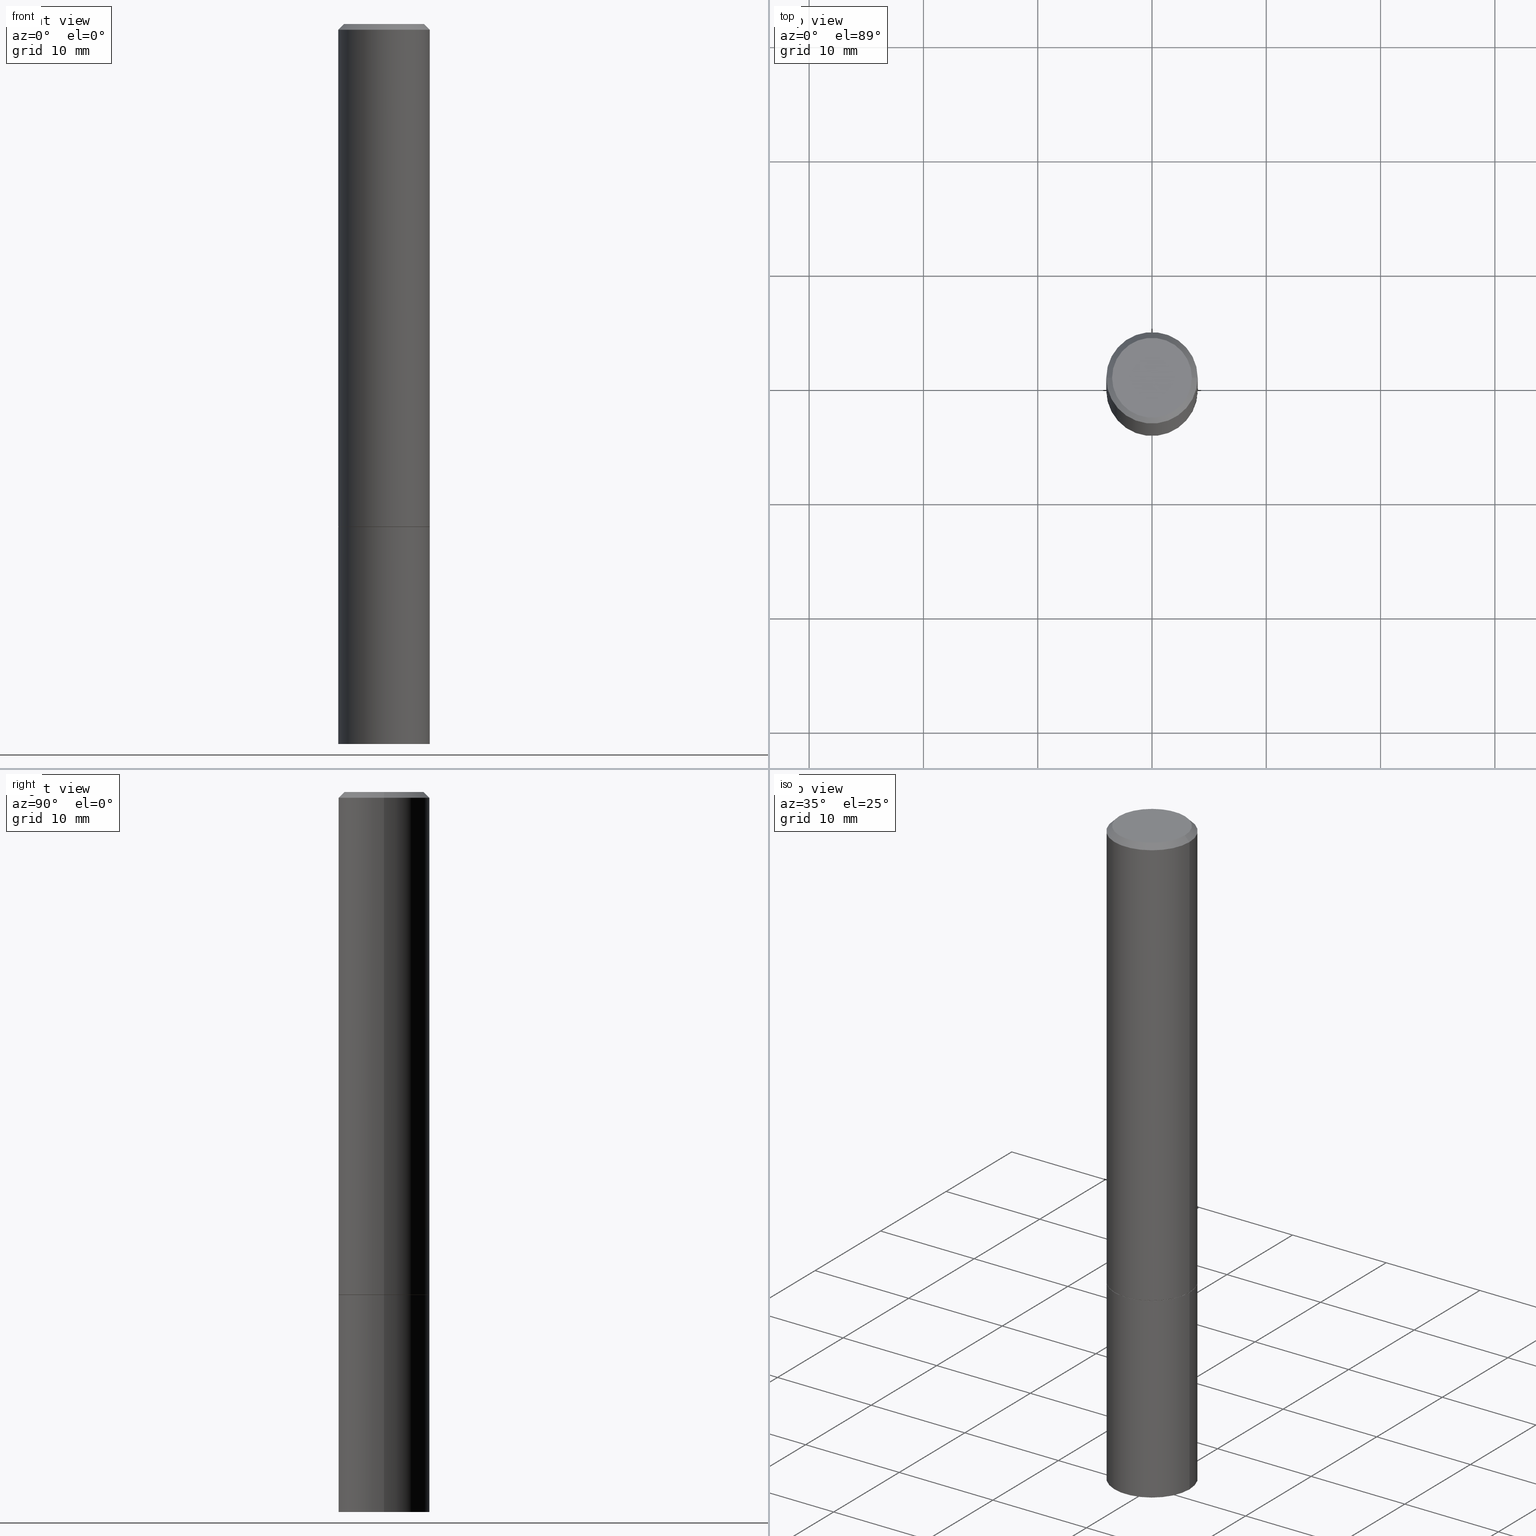
[diagram: canonical four-view strip — front | top / right | iso, engineering-drawing reading convention]
A machine part, canonical four-view strip (front | top / right | iso — engineering-drawing reading convention). The complete STEP part file that produces these views, byte-faithful:
ISO-10303-21;
HEADER;
FILE_DESCRIPTION (( 'STEP AP203' ),
    '1' );
FILE_NAME ('46362.STEP',
    '2024-02-28T10:21:04',
    ( '' ),
    ( '' ),
    'SwSTEP 2.0',
    'SolidWorks 2023',
    '' );
FILE_SCHEMA (( 'CONFIG_CONTROL_DESIGN' ));
ENDSEC;

DATA;
#1 = CC_DESIGN_PERSON_AND_ORGANIZATION_ASSIGNMENT ( #346, #153, ( #106 ) ) ;
#2 = DATE_AND_TIME ( #252, #320 ) ;
#3 = EDGE_LOOP ( 'NONE', ( #171, #60 ) ) ;
#4 = CALENDAR_DATE ( 2024, 28, 2 ) ;
#5 = LINE ( 'NONE', #285, #237 ) ;
#6 =( LENGTH_UNIT ( ) NAMED_UNIT ( * ) SI_UNIT ( $, .METRE. ) );
#7 = ADVANCED_FACE ( 'NONE', ( #15 ), #282, .T. ) ;
#8 = CIRCLE ( 'NONE', #221, 0.1374999999999997613 ) ;
#9 = CARTESIAN_POINT ( 'NONE',  ( -0.1575000000000000011, -1.938210825535841109E-15, -1.731300000000000283 ) ) ;
#10 = DATE_TIME_ROLE ( 'classification_date' ) ;
#11 = ORIENTED_EDGE ( 'NONE', *, *, #33, .F. ) ;
#12 = AXIS2_PLACEMENT_3D ( 'NONE', #34, #26, #164 ) ;
#13 = LOCAL_TIME ( 5, 21, 4.000000000000000000, #223 ) ;
#14 = EDGE_CURVE ( 'NONE', #300, #318, #341, .T. ) ;
#15 = FACE_OUTER_BOUND ( 'NONE', #195, .T. ) ;
#16 = DIRECTION ( 'NONE',  ( -2.445468806185136597E-29, 3.491481338843145583E-15, 1.000000000000000000 ) ) ;
#17 = FACE_OUTER_BOUND ( 'NONE', #365, .T. ) ;
#18 = DIRECTION ( 'NONE',  ( 1.000000000000000000, -6.982962677686267499E-15, 0.000000000000000000 ) ) ;
#19 = ADVANCED_FACE ( 'NONE', ( #43 ), #266, .F. ) ;
#20 = ORIENTED_EDGE ( 'NONE', *, *, #273, .T. ) ;
#21 = CARTESIAN_POINT ( 'NONE',  ( 6.065496279980994755E-29, -8.659921164732655335E-15, -2.480300000000000171 ) ) ;
#22 = CLOSED_SHELL ( 'NONE', ( #240, #148, #360, #188 ) ) ;
#23 = DIRECTION ( 'NONE',  ( -2.445468806185136597E-29, 3.491481338843145583E-15, 1.000000000000000000 ) ) ;
#24 = AXIS2_PLACEMENT_3D ( 'NONE', #231, #83, #184 ) ;
#25 = AXIS2_PLACEMENT_3D ( 'NONE', #120, #23, #238 ) ;
#26 = DIRECTION ( 'NONE',  ( -2.445468806185136597E-29, 3.491481338843145583E-15, 1.000000000000000000 ) ) ;
#27 = ADVANCED_FACE ( 'NONE', ( #17 ), #116, .F. ) ;
#28 = AXIS2_PLACEMENT_3D ( 'NONE', #119, #331, #71 ) ;
#29 = VECTOR ( 'NONE', #176, 39.37007874015748143 ) ;
#30 = ORIENTED_EDGE ( 'NONE', *, *, #196, .T. ) ;
#31 = DATE_AND_TIME ( #284, #162 ) ;
#32 = DIRECTION ( 'NONE',  ( -0.7071067811865232589, 7.493145998870265808E-15, 0.7071067811865715536 ) ) ;
#33 = EDGE_CURVE ( 'NONE', #235, #318, #5, .T. ) ;
#34 = CARTESIAN_POINT ( 'NONE',  ( 4.236285612954512953E-29, -6.048293123277982656E-15, -1.732300000000000173 ) ) ;
#35 = CIRCLE ( 'NONE', #28, 0.1575000000000000011 ) ;
#36 = CARTESIAN_POINT ( 'NONE',  ( 1.099816621735629290E-15, 0.1574999999999939504, -1.732300000000001061 ) ) ;
#37 = LINE ( 'NONE', #214, #192 ) ;
#38 = CARTESIAN_POINT ( 'NONE',  ( 4.236285612954512953E-29, -6.048293123277982656E-15, -1.732300000000000173 ) ) ;
#39 = APPROVAL ( #247, 'UNSPECIFIED' ) ;
#40 = VERTEX_POINT ( 'NONE', #107 ) ;
#41 = FACE_OUTER_BOUND ( 'NONE', #280, .T. ) ;
#42 = CC_DESIGN_SECURITY_CLASSIFICATION ( #241, ( #363 ) ) ;
#43 = FACE_OUTER_BOUND ( 'NONE', #92, .T. ) ;
#44 = EDGE_CURVE ( 'NONE', #235, #179, #150, .T. ) ;
#45 = CARTESIAN_POINT ( 'NONE',  ( 0.000000000000000000, 0.000000000000000000, 0.000000000000000000 ) ) ;
#46 = CARTESIAN_POINT ( 'NONE',  ( 4.236285612954512953E-29, -6.048293123277982656E-15, -1.732300000000000173 ) ) ;
#47 = APPROVAL_PERSON_ORGANIZATION ( #183, #302, #161 ) ;
#48 = LINE ( 'NONE', #361, #258 ) ;
#49 = DIRECTION ( 'NONE',  ( 1.000000000000000000, -6.982962677686267499E-15, 0.000000000000000000 ) ) ;
#50 = AXIS2_PLACEMENT_3D ( 'NONE', #190, #75, #246 ) ;
#51 = APPLICATION_PROTOCOL_DEFINITION ( 'international standard', 'config_control_design', 1994, #255 ) ;
#52 = AXIS2_PLACEMENT_3D ( 'NONE', #267, #16, #357 ) ;
#53 = COORDINATED_UNIVERSAL_TIME_OFFSET ( 5, 0, .BEHIND. ) ;
#54 = SHAPE_DEFINITION_REPRESENTATION ( #321, #261 ) ;
#55 = LENGTH_MEASURE_WITH_UNIT ( LENGTH_MEASURE( 0.02539999999999999897 ), #6 );
#56 = ORIENTED_EDGE ( 'NONE', *, *, #109, .T. ) ;
#57 = DIRECTION ( 'NONE',  ( -1.000000000000000000, 6.982962677686266711E-15, 0.000000000000000000 ) ) ;
#58 = APPROVAL_DATE_TIME ( #157, #65 ) ;
#59 = AXIS2_PLACEMENT_3D ( 'NONE', #278, #147, #127 ) ;
#60 = ORIENTED_EDGE ( 'NONE', *, *, #309, .F. ) ;
#61 = EDGE_CURVE ( 'NONE', #135, #198, #37, .T. ) ;
#62 =( NAMED_UNIT ( * ) SI_UNIT ( $, .STERADIAN. ) SOLID_ANGLE_UNIT ( ) );
#63 = PERSON_AND_ORGANIZATION_ROLE ( 'classification_officer' ) ;
#64 = EDGE_LOOP ( 'NONE', ( #306, #315, #77, #67 ) ) ;
#65 = APPROVAL ( #104, 'UNSPECIFIED' ) ;
#66 = ORIENTED_EDGE ( 'NONE', *, *, #233, .T. ) ;
#67 = ORIENTED_EDGE ( 'NONE', *, *, #349, .F. ) ;
#68 = CARTESIAN_POINT ( 'NONE',  ( 4.890937612370281041E-31, -6.982962677686302702E-17, -0.02000000000000003511 ) ) ;
#69 = CC_DESIGN_APPROVAL ( #302, ( #363 ) ) ;
#70 = EDGE_CURVE ( 'NONE', #303, #143, #8, .T. ) ;
#71 = DIRECTION ( 'NONE',  ( 1.000000000000000000, -6.982962677686268288E-15, 0.000000000000000000 ) ) ;
#72 = DESIGN_CONTEXT ( 'detailed design', #255, 'design' ) ;
#73 = DIRECTION ( 'NONE',  ( 0.7071067811865232589, -2.468850131082003836E-15, 0.7071067811865715536 ) ) ;
#74 = ORIENTED_EDGE ( 'NONE', *, *, #326, .F. ) ;
#75 = DIRECTION ( 'NONE',  ( -2.445468806185136597E-29, 3.491481338843145583E-15, 1.000000000000000000 ) ) ;
#76 = DIRECTION ( 'NONE',  ( -2.445468806185136597E-29, 3.491481338843145583E-15, 1.000000000000000000 ) ) ;
#77 = ORIENTED_EDGE ( 'NONE', *, *, #172, .T. ) ;
#78 = CC_DESIGN_DATE_AND_TIME_ASSIGNMENT ( #344, #81, ( #106 ) ) ;
#79 = VECTOR ( 'NONE', #269, 39.37007874015748143 ) ;
#80 = APPROVAL_PERSON_ORGANIZATION ( #99, #65, #314 ) ;
#81 = DATE_TIME_ROLE ( 'creation_date' ) ;
#82 =( CONVERSION_BASED_UNIT ( 'INCH', #55 ) LENGTH_UNIT ( ) NAMED_UNIT ( #259 ) );
#83 = DIRECTION ( 'NONE',  ( -2.438088387897960049E-29, 3.491481338843145188E-15, 1.000000000000000000 ) ) ;
#84 = APPLICATION_PROTOCOL_DEFINITION ( 'international standard', 'config_control_design', 1994, #228 ) ;
#85 = EDGE_LOOP ( 'NONE', ( #11, #345, #20, #313 ) ) ;
#86 = DIRECTION ( 'NONE',  ( 1.000000000000000000, -6.982962677686268288E-15, 0.000000000000000000 ) ) ;
#87 = CARTESIAN_POINT ( 'NONE',  ( -0.1574999999999997513, 1.029986994958722210E-15, -0.02000000000000003511 ) ) ;
#88 = CIRCLE ( 'NONE', #50, 0.1574999999999997513 ) ;
#89 = CONICAL_SURFACE ( 'NONE', #102, 0.1574999999999997513, 0.7853981633974471688 ) ;
#90 = ORIENTED_EDGE ( 'NONE', *, *, #219, .F. ) ;
#91 = DIRECTION ( 'NONE',  ( 1.000000000000000000, -6.982962677686266711E-15, 4.876176775795935793E-29 ) ) ;
#92 = EDGE_LOOP ( 'NONE', ( #105, #66 ) ) ;
#93 = FACE_OUTER_BOUND ( 'NONE', #358, .T. ) ;
#94 = CONICAL_SURFACE ( 'NONE', #290, 0.1565000000000000002, 0.7853981633974141952 ) ;
#95 = LINE ( 'NONE', #123, #29 ) ;
#96 = EDGE_CURVE ( 'NONE', #179, #235, #145, .T. ) ;
#97 = CONICAL_SURFACE ( 'NONE', #166, 0.1565000000000000002, 0.7853981633974141952 ) ;
#98 = EDGE_CURVE ( 'NONE', #318, #300, #201, .T. ) ;
#99 = PERSON_AND_ORGANIZATION ( #324, #342 ) ;
#100 = FACE_OUTER_BOUND ( 'NONE', #3, .T. ) ;
#101 = CIRCLE ( 'NONE', #327, 0.1575000000000000011 ) ;
#102 = AXIS2_PLACEMENT_3D ( 'NONE', #108, #156, #57 ) ;
#103 = DIRECTION ( 'NONE',  ( -2.445468806185136597E-29, 3.491481338843145583E-15, 1.000000000000000000 ) ) ;
#104 = APPROVAL_STATUS ( 'not_yet_approved' ) ;
#105 = ORIENTED_EDGE ( 'NONE', *, *, #70, .T. ) ;
#106 = PRODUCT_DEFINITION ( 'UNKNOWN', '', #363, #72 ) ;
#107 = CARTESIAN_POINT ( 'NONE',  ( -0.1575000000000000011, -6.235002335183160998E-15, -2.480300000000000171 ) ) ;
#108 = CARTESIAN_POINT ( 'NONE',  ( 4.890937612370281041E-31, -6.982962677686302702E-17, -0.02000000000000003511 ) ) ;
#109 = EDGE_CURVE ( 'NONE', #218, #330, #88, .T. ) ;
#110 = FACE_OUTER_BOUND ( 'NONE', #85, .T. ) ;
#111 = CARTESIAN_POINT ( 'NONE',  ( 4.890937612370281041E-31, -6.982962677686302702E-17, -0.02000000000000003511 ) ) ;
#112 = AXIS2_PLACEMENT_3D ( 'NONE', #38, #225, #114 ) ;
#113 = AXIS2_PLACEMENT_3D ( 'NONE', #36, #138, #249 ) ;
#114 = DIRECTION ( 'NONE',  ( 1.000000000000000000, -6.982962677686267499E-15, 0.000000000000000000 ) ) ;
#115 = ORIENTED_EDGE ( 'NONE', *, *, #273, .F. ) ;
#116 = PLANE ( 'NONE',  #24 ) ;
#117 = DIRECTION ( 'NONE',  ( 1.000000000000000000, -6.982962677686266711E-15, 0.000000000000000000 ) ) ;
#118 = DIRECTION ( 'NONE',  ( 1.000000000000000000, -6.982962677686265922E-15, 4.876176775795935232E-29 ) ) ;
#119 = CARTESIAN_POINT ( 'NONE',  ( 4.236285612954512953E-29, -6.048293123277982656E-15, -1.732300000000000173 ) ) ;
#120 = CARTESIAN_POINT ( 'NONE',  ( 0.000000000000000000, 0.000000000000000000, 0.000000000000000000 ) ) ;
#121 = CC_DESIGN_PERSON_AND_ORGANIZATION_ASSIGNMENT ( #310, #129, ( #286 ) ) ;
#122 = ORIENTED_EDGE ( 'NONE', *, *, #44, .F. ) ;
#123 = CARTESIAN_POINT ( 'NONE',  ( 0.1574999999999997513, -1.150358061425877697E-15, -0.02000000000000003511 ) ) ;
#124 = ORIENTED_EDGE ( 'NONE', *, *, #61, .F. ) ;
#125 = CARTESIAN_POINT ( 'NONE',  ( 4.233840144148327350E-29, -6.044801641939138860E-15, -1.731300000000000283 ) ) ;
#126 = EDGE_LOOP ( 'NONE', ( #356, #155 ) ) ;
#127 = DIRECTION ( 'NONE',  ( 1.000000000000000000, -6.982962677686265922E-15, 4.876173381029109010E-29 ) ) ;
#128 = ORIENTED_EDGE ( 'NONE', *, *, #219, .T. ) ;
#129 = PERSON_AND_ORGANIZATION_ROLE ( 'design_owner' ) ;
#130 = MANIFOLD_SOLID_BREP ( 'Body-Move/Copy2[1]', #22 ) ;
#131 = DIRECTION ( 'NONE',  ( -1.000000000000000000, 6.982962677686265922E-15, -4.876176775795935793E-29 ) ) ;
#132 = EDGE_LOOP ( 'NONE', ( #90, #308, #275, #170 ) ) ;
#133 = CALENDAR_DATE ( 2024, 28, 2 ) ;
#134 = COORDINATED_UNIVERSAL_TIME_OFFSET ( 5, 0, .BEHIND. ) ;
#135 = VERTEX_POINT ( 'NONE', #243 ) ;
#136 = AXIS2_PLACEMENT_3D ( 'NONE', #125, #103, #86 ) ;
#137 = CC_DESIGN_DATE_AND_TIME_ASSIGNMENT ( #139, #10, ( #241 ) ) ;
#138 = DIRECTION ( 'NONE',  ( 2.438088387897960049E-29, -3.491481338843145188E-15, -1.000000000000000000 ) ) ;
#139 = DATE_AND_TIME ( #295, #13 ) ;
#140 = ORIENTED_EDGE ( 'NONE', *, *, #172, .F. ) ;
#141 = ORIENTED_EDGE ( 'NONE', *, *, #109, .F. ) ;
#142 = CLOSED_SHELL ( 'NONE', ( #338, #297, #7, #319, #165, #212, #27, #19 ) ) ;
#143 = VERTEX_POINT ( 'NONE', #366 ) ;
#144 = ORIENTED_EDGE ( 'NONE', *, *, #96, .F. ) ;
#145 = CIRCLE ( 'NONE', #12, 0.1565000000000000002 ) ;
#146 = APPROVAL_PERSON_ORGANIZATION ( #353, #39, #230 ) ;
#147 = DIRECTION ( 'NONE',  ( -2.445468806185136597E-29, 3.491481338843145583E-15, 1.000000000000000000 ) ) ;
#148 = ADVANCED_FACE ( 'NONE', ( #100 ), #348, .T. ) ;
#149 = EDGE_LOOP ( 'NONE', ( #336, #30, #74, #124 ) ) ;
#150 = CIRCLE ( 'NONE', #112, 0.1565000000000000002 ) ;
#151 = CIRCLE ( 'NONE', #59, 0.1374999999999997613 ) ;
#152 = DIRECTION ( 'NONE',  ( 1.000000000000000000, -6.982962677686265922E-15, 4.876173381029109010E-29 ) ) ;
#153 = PERSON_AND_ORGANIZATION_ROLE ( 'creator' ) ;
#154 = DIRECTION ( 'NONE',  ( -2.445468806185136597E-29, 3.491481338843145583E-15, 1.000000000000000000 ) ) ;
#155 = ORIENTED_EDGE ( 'NONE', *, *, #181, .T. ) ;
#156 = DIRECTION ( 'NONE',  ( 2.445468806185136597E-29, -3.491481338843145583E-15, -1.000000000000000000 ) ) ;
#157 = DATE_AND_TIME ( #4, #335 ) ;
#158 = ORIENTED_EDGE ( 'NONE', *, *, #33, .T. ) ;
#159 = CC_DESIGN_PERSON_AND_ORGANIZATION_ASSIGNMENT ( #351, #325, ( #363 ) ) ;
#160 = AXIS2_PLACEMENT_3D ( 'NONE', #257, #340, #131 ) ;
#161 = APPROVAL_ROLE ( '' ) ;
#162 = LOCAL_TIME ( 5, 21, 4.000000000000000000, #134 ) ;
#163 = DIRECTION ( 'NONE',  ( -2.445468806185136597E-29, 3.491481338843145583E-15, 1.000000000000000000 ) ) ;
#164 = DIRECTION ( 'NONE',  ( 1.000000000000000000, -6.982962677686267499E-15, 0.000000000000000000 ) ) ;
#165 = ADVANCED_FACE ( 'NONE', ( #189 ), #323, .T. ) ;
#166 = AXIS2_PLACEMENT_3D ( 'NONE', #199, #333, #18 ) ;
#167 = FACE_OUTER_BOUND ( 'NONE', #126, .T. ) ;
#168 = DIRECTION ( 'NONE',  ( 1.000000000000000000, -6.982962677686261977E-15, 0.000000000000000000 ) ) ;
#169 = PERSON_AND_ORGANIZATION ( #324, #342 ) ;
#170 = ORIENTED_EDGE ( 'NONE', *, *, #349, .T. ) ;
#171 = ORIENTED_EDGE ( 'NONE', *, *, #205, .F. ) ;
#172 = EDGE_CURVE ( 'NONE', #300, #218, #197, .T. ) ;
#173 = ORIENTED_EDGE ( 'NONE', *, *, #181, .F. ) ;
#174 = AXIS2_PLACEMENT_3D ( 'NONE', #220, #299, #262 ) ;
#175 = DIRECTION ( 'NONE',  ( -2.445468806185136597E-29, 3.491481338843145583E-15, 1.000000000000000000 ) ) ;
#176 = DIRECTION ( 'NONE',  ( 0.7071067811865466846, -7.319954787623252890E-15, -0.7071067811865483499 ) ) ;
#177 = LINE ( 'NONE', #274, #202 ) ;
#178 = DIRECTION ( 'NONE',  ( 1.000000000000000000, -6.982962677686266711E-15, 4.876176775795935793E-29 ) ) ;
#179 = VERTEX_POINT ( 'NONE', #200 ) ;
#180 = DIRECTION ( 'NONE',  ( 1.000000000000000000, 0.000000000000000000, 0.000000000000000000 ) ) ;
#181 = EDGE_CURVE ( 'NONE', #281, #198, #35, .T. ) ;
#182 = CARTESIAN_POINT ( 'NONE',  ( 0.1575000000000000011, -7.144618263674725551E-15, -1.731300000000000283 ) ) ;
#183 = PERSON_AND_ORGANIZATION ( #324, #342 ) ;
#184 = DIRECTION ( 'NONE',  ( 1.000000000000000000, -6.982962677686265922E-15, 4.876176775795935793E-29 ) ) ;
#185 = CC_DESIGN_APPROVAL ( #39, ( #241 ) ) ;
#186 = ORIENTED_EDGE ( 'NONE', *, *, #14, .T. ) ;
#187 = CARTESIAN_POINT ( 'NONE',  ( -0.1374999999999997613, 9.950721815702909552E-16, 4.268512490093574228E-18 ) ) ;
#188 = ADVANCED_FACE ( 'NONE', ( #41 ), #268, .T. ) ;
#189 = FACE_OUTER_BOUND ( 'NONE', #64, .T. ) ;
#190 = CARTESIAN_POINT ( 'NONE',  ( 4.890937612370281041E-31, -6.982962677686302702E-17, -0.02000000000000003511 ) ) ;
#191 = DIRECTION ( 'NONE',  ( -2.445468806185136597E-29, 3.491481338843145583E-15, 1.000000000000000000 ) ) ;
#192 = VECTOR ( 'NONE', #289, 39.37007874015748143 ) ;
#193 = AXIS2_PLACEMENT_3D ( 'NONE', #298, #239, #180 ) ;
#194 = DIRECTION ( 'NONE',  ( -2.445468806185136597E-29, 3.491481338843145583E-15, 1.000000000000000000 ) ) ;
#195 = EDGE_LOOP ( 'NONE', ( #272, #128, #56, #244 ) ) ;
#196 = EDGE_CURVE ( 'NONE', #40, #281, #236, .T. ) ;
#197 = LINE ( 'NONE', #352, #208 ) ;
#198 = VERTEX_POINT ( 'NONE', #204 ) ;
#199 = CARTESIAN_POINT ( 'NONE',  ( 4.236285612954512953E-29, -6.048293123277982656E-15, -1.732300000000000173 ) ) ;
#200 = CARTESIAN_POINT ( 'NONE',  ( 0.1565000000000000002, -7.141126782335882544E-15, -1.732300000000000173 ) ) ;
#201 = CIRCLE ( 'NONE', #136, 0.1575000000000000011 ) ;
#202 = VECTOR ( 'NONE', #242, 39.37007874015748143 ) ;
#203 = ORIENTED_EDGE ( 'NONE', *, *, #96, .T. ) ;
#204 = CARTESIAN_POINT ( 'NONE',  ( 0.1575000000000000011, -7.148109745013570136E-15, -1.732300000000000173 ) ) ;
#205 = EDGE_CURVE ( 'NONE', #135, #40, #101, .T. ) ;
#206 = UNCERTAINTY_MEASURE_WITH_UNIT (LENGTH_MEASURE( 1.000000000000000082E-05 ), #82, 'distance_accuracy_value', 'NONE');
#207 = CARTESIAN_POINT ( 'NONE',  ( -0.1575000000000000011, -6.235002335183160998E-15, -1.732300000000000173 ) ) ;
#208 = VECTOR ( 'NONE', #229, 39.37007874015748143 ) ;
#209 = ORIENTED_EDGE ( 'NONE', *, *, #292, .T. ) ;
#210 = AXIS2_PLACEMENT_3D ( 'NONE', #287, #256, #216 ) ;
#211 = CARTESIAN_POINT ( 'NONE',  ( -0.1574999999999997513, 1.029986994958722210E-15, -0.02000000000000003511 ) ) ;
#212 = ADVANCED_FACE ( 'NONE', ( #110 ), #94, .T. ) ;
#213 = CYLINDRICAL_SURFACE ( 'NONE', #283, 0.1574999999999998901 ) ;
#214 = CARTESIAN_POINT ( 'NONE',  ( 0.1575000000000000011, -1.099816621735586889E-15, 7.679978421878598033E-30 ) ) ;
#215 = AXIS2_PLACEMENT_3D ( 'NONE', #45, #175, #118 ) ;
#216 = DIRECTION ( 'NONE',  ( 1.000000000000000000, -6.982962677686261977E-15, 0.000000000000000000 ) ) ;
#217 = PRODUCT_RELATED_PRODUCT_CATEGORY ( 'detail', '', ( #286 ) ) ;
#218 = VERTEX_POINT ( 'NONE', #276 ) ;
#219 = EDGE_CURVE ( 'NONE', #143, #218, #95, .T. ) ;
#220 = CARTESIAN_POINT ( 'NONE',  ( 9.601573681818598978E-16, 0.1374999999999997613, -4.779444278458815105E-16 ) ) ;
#221 = AXIS2_PLACEMENT_3D ( 'NONE', #350, #154, #152 ) ;
#222 = LOCAL_TIME ( 5, 21, 4.000000000000000000, #279 ) ;
#223 = COORDINATED_UNIVERSAL_TIME_OFFSET ( 5, 0, .BEHIND. ) ;
#224 = CC_DESIGN_PERSON_AND_ORGANIZATION_ASSIGNMENT ( #329, #291, ( #363 ) ) ;
#225 = DIRECTION ( 'NONE',  ( -2.445468806185136597E-29, 3.491481338843145583E-15, 1.000000000000000000 ) ) ;
#226 = CIRCLE ( 'NONE', #210, 0.1575000000000000011 ) ;
#227 = EDGE_LOOP ( 'NONE', ( #186, #209, #141, #140 ) ) ;
#228 = APPLICATION_CONTEXT ( 'configuration controlled 3d designs of mechanical parts and assemblies' ) ;
#229 = DIRECTION ( 'NONE',  ( -2.445468806185136877E-29, 3.491481338843145188E-15, 1.000000000000000000 ) ) ;
#230 = APPROVAL_ROLE ( '' ) ;
#231 = CARTESIAN_POINT ( 'NONE',  ( 4.236285612954513513E-29, -6.048293123277983445E-15, -1.732300000000000617 ) ) ;
#232 =( NAMED_UNIT ( * ) PLANE_ANGLE_UNIT ( ) SI_UNIT ( $, .RADIAN. ) );
#233 = EDGE_CURVE ( 'NONE', #143, #303, #151, .T. ) ;
#234 = PLANE ( 'NONE',  #113 ) ;
#235 = VERTEX_POINT ( 'NONE', #307 ) ;
#236 = LINE ( 'NONE', #359, #79 ) ;
#237 = VECTOR ( 'NONE', #32, 39.37007874015748854 ) ;
#238 = DIRECTION ( 'NONE',  ( 1.000000000000000000, -6.982962677686265922E-15, 4.876176775795935232E-29 ) ) ;
#239 = DIRECTION ( 'NONE',  ( 0.000000000000000000, 0.000000000000000000, 1.000000000000000000 ) ) ;
#240 = ADVANCED_FACE ( 'NONE', ( #301 ), #271, .T. ) ;
#241 = SECURITY_CLASSIFICATION ( '', '', #293 ) ;
#242 = DIRECTION ( 'NONE',  ( -2.445468806185136877E-29, 3.491481338843145188E-15, 1.000000000000000000 ) ) ;
#243 = CARTESIAN_POINT ( 'NONE',  ( 0.1575000000000000011, -9.759737786468242027E-15, -2.480300000000000171 ) ) ;
#244 = ORIENTED_EDGE ( 'NONE', *, *, #248, .F. ) ;
#245 = MECHANICAL_CONTEXT ( 'NONE', #228, 'mechanical' ) ;
#246 = DIRECTION ( 'NONE',  ( 1.000000000000000000, -6.982962677686266711E-15, 0.000000000000000000 ) ) ;
#247 = APPROVAL_STATUS ( 'not_yet_approved' ) ;
#248 = EDGE_CURVE ( 'NONE', #303, #330, #304, .T. ) ;
#249 = DIRECTION ( 'NONE',  ( -1.000000000000000000, 6.982962677686265922E-15, -4.876176775795935793E-29 ) ) ;
#250 = ORIENTED_EDGE ( 'NONE', *, *, #14, .F. ) ;
#251 = VECTOR ( 'NONE', #337, 39.37007874015748143 ) ;
#252 = CALENDAR_DATE ( 2024, 28, 2 ) ;
#253 = APPROVAL_DATE_TIME ( #31, #302 ) ;
#254 = CARTESIAN_POINT ( 'NONE',  ( 4.233840144148327350E-29, -6.044801641939138860E-15, -1.731300000000000283 ) ) ;
#255 = APPLICATION_CONTEXT ( 'configuration controlled 3d designs of mechanical parts and assemblies' ) ;
#256 = DIRECTION ( 'NONE',  ( -2.445468806185136597E-29, 3.491481338843145583E-15, 1.000000000000000000 ) ) ;
#257 = CARTESIAN_POINT ( 'NONE',  ( 1.099816621735647434E-15, 0.1574999999999913136, -2.480300000000001059 ) ) ;
#258 = VECTOR ( 'NONE', #73, 39.37007874015748854 ) ;
#259 = DIMENSIONAL_EXPONENTS ( 1.000000000000000000, 0.000000000000000000, 0.000000000000000000, 0.000000000000000000, 0.000000000000000000, 0.000000000000000000, 0.000000000000000000 ) ;
#260 = MANIFOLD_SOLID_BREP ( 'Body-Move/Copy2[2]', #142 ) ;
#261 = ADVANCED_BREP_SHAPE_REPRESENTATION ( '46362', ( #130, #260, #193 ), #347 ) ;
#262 = DIRECTION ( 'NONE',  ( -1.000000000000000000, 6.982962677686265922E-15, -4.876176775795935793E-29 ) ) ;
#263 = DIRECTION ( 'NONE',  ( 1.000000000000000000, -6.982962677686268288E-15, 0.000000000000000000 ) ) ;
#264 = CIRCLE ( 'NONE', #328, 0.1574999999999997513 ) ;
#265 = DIRECTION ( 'NONE',  ( -2.445468806185136597E-29, 3.491481338843145583E-15, 1.000000000000000000 ) ) ;
#266 = PLANE ( 'NONE',  #174 ) ;
#267 = CARTESIAN_POINT ( 'NONE',  ( 4.236285612954512953E-29, -6.048293123277982656E-15, -1.732300000000000173 ) ) ;
#268 = CYLINDRICAL_SURFACE ( 'NONE', #215, 0.1575000000000000011 ) ;
#269 = DIRECTION ( 'NONE',  ( -2.445468806185136877E-29, 3.491481338843145188E-15, 1.000000000000000000 ) ) ;
#270 = CIRCLE ( 'NONE', #52, 0.1575000000000000011 ) ;
#271 = CYLINDRICAL_SURFACE ( 'NONE', #25, 0.1575000000000000011 ) ;
#272 = ORIENTED_EDGE ( 'NONE', *, *, #233, .F. ) ;
#273 = EDGE_CURVE ( 'NONE', #179, #300, #48, .T. ) ;
#274 = CARTESIAN_POINT ( 'NONE',  ( -0.1574999999999998901, 1.119104808822157012E-15, -7.747322767151471379E-30 ) ) ;
#275 = ORIENTED_EDGE ( 'NONE', *, *, #248, .T. ) ;
#276 = CARTESIAN_POINT ( 'NONE',  ( 0.1574999999999997513, -1.150358061425877697E-15, -0.02000000000000003511 ) ) ;
#277 = CC_DESIGN_PERSON_AND_ORGANIZATION_ASSIGNMENT ( #169, #63, ( #241 ) ) ;
#278 = CARTESIAN_POINT ( 'NONE',  ( -1.043851414335219820E-46, 1.490343170380447200E-32, 4.268512490100411279E-18 ) ) ;
#279 = COORDINATED_UNIVERSAL_TIME_OFFSET ( 5, 0, .BEHIND. ) ;
#280 = EDGE_LOOP ( 'NONE', ( #296, #322, #354, #173 ) ) ;
#281 = VERTEX_POINT ( 'NONE', #207 ) ;
#282 = CONICAL_SURFACE ( 'NONE', #334, 0.1574999999999997513, 0.7853981633974471688 ) ;
#283 = AXIS2_PLACEMENT_3D ( 'NONE', #339, #76, #178 ) ;
#284 = CALENDAR_DATE ( 2024, 28, 2 ) ;
#285 = CARTESIAN_POINT ( 'NONE',  ( -0.1565000000000000002, -4.936293741813426061E-15, -1.732300000000000173 ) ) ;
#286 = PRODUCT ( '46362', '46362', '', ( #245 ) ) ;
#287 = CARTESIAN_POINT ( 'NONE',  ( 6.065496279980994755E-29, -8.659921164732655335E-15, -2.480300000000000171 ) ) ;
#288 = AXIS2_PLACEMENT_3D ( 'NONE', #355, #265, #91 ) ;
#289 = DIRECTION ( 'NONE',  ( -2.445468806185136877E-29, 3.491481338843145188E-15, 1.000000000000000000 ) ) ;
#290 = AXIS2_PLACEMENT_3D ( 'NONE', #46, #362, #49 ) ;
#291 = PERSON_AND_ORGANIZATION_ROLE ( 'creator' ) ;
#292 = EDGE_CURVE ( 'NONE', #318, #330, #177, .T. ) ;
#293 = SECURITY_CLASSIFICATION_LEVEL ( 'unclassified' ) ;
#294 = DIRECTION ( 'NONE',  ( 2.445468806185136597E-29, -3.491481338843145583E-15, -1.000000000000000000 ) ) ;
#295 = CALENDAR_DATE ( 2024, 28, 2 ) ;
#296 = ORIENTED_EDGE ( 'NONE', *, *, #196, .F. ) ;
#297 = ADVANCED_FACE ( 'NONE', ( #364 ), #213, .T. ) ;
#298 = CARTESIAN_POINT ( 'NONE',  ( 0.000000000000000000, 0.000000000000000000, 0.000000000000000000 ) ) ;
#299 = DIRECTION ( 'NONE',  ( 2.438088387897960049E-29, -3.491481338843145188E-15, -1.000000000000000000 ) ) ;
#300 = VERTEX_POINT ( 'NONE', #182 ) ;
#301 = FACE_OUTER_BOUND ( 'NONE', #149, .T. ) ;
#302 = APPROVAL ( #317, 'UNSPECIFIED' ) ;
#303 = VERTEX_POINT ( 'NONE', #187 ) ;
#304 = LINE ( 'NONE', #211, #251 ) ;
#305 = COORDINATED_UNIVERSAL_TIME_OFFSET ( 5, 0, .BEHIND. ) ;
#306 = ORIENTED_EDGE ( 'NONE', *, *, #292, .F. ) ;
#307 = CARTESIAN_POINT ( 'NONE',  ( -0.1565000000000000002, -4.930995287465202870E-15, -1.732300000000000173 ) ) ;
#308 = ORIENTED_EDGE ( 'NONE', *, *, #70, .F. ) ;
#309 = EDGE_CURVE ( 'NONE', #40, #135, #226, .T. ) ;
#310 = PERSON_AND_ORGANIZATION ( #324, #342 ) ;
#311 = AXIS2_PLACEMENT_3D ( 'NONE', #254, #163, #263 ) ;
#312 = CC_DESIGN_APPROVAL ( #65, ( #106 ) ) ;
#313 = ORIENTED_EDGE ( 'NONE', *, *, #98, .F. ) ;
#314 = APPROVAL_ROLE ( '' ) ;
#315 = ORIENTED_EDGE ( 'NONE', *, *, #98, .T. ) ;
#316 = FACE_OUTER_BOUND ( 'NONE', #132, .T. ) ;
#317 = APPROVAL_STATUS ( 'not_yet_approved' ) ;
#318 = VERTEX_POINT ( 'NONE', #9 ) ;
#319 = ADVANCED_FACE ( 'NONE', ( #316 ), #89, .T. ) ;
#320 = LOCAL_TIME ( 5, 21, 4.000000000000000000, #305 ) ;
#321 = PRODUCT_DEFINITION_SHAPE ( 'NONE', 'NONE',  #106 ) ;
#322 = ORIENTED_EDGE ( 'NONE', *, *, #309, .T. ) ;
#323 = CYLINDRICAL_SURFACE ( 'NONE', #288, 0.1574999999999998901 ) ;
#324 = PERSON ( 'UNSPECIFIED', 'UNSPECIFIED', 'UNSPECIFIED', ('UNSPECIFIED'), ('UNSPECIFIED'), ('UNSPECIFIED') ) ;
#325 = PERSON_AND_ORGANIZATION_ROLE ( 'design_supplier' ) ;
#326 = EDGE_CURVE ( 'NONE', #198, #281, #270, .T. ) ;
#327 = AXIS2_PLACEMENT_3D ( 'NONE', #21, #191, #168 ) ;
#328 = AXIS2_PLACEMENT_3D ( 'NONE', #68, #194, #117 ) ;
#329 = PERSON_AND_ORGANIZATION ( #324, #342 ) ;
#330 = VERTEX_POINT ( 'NONE', #87 ) ;
#331 = DIRECTION ( 'NONE',  ( -2.445468806185136597E-29, 3.491481338843145583E-15, 1.000000000000000000 ) ) ;
#332 = DIRECTION ( 'NONE',  ( -1.000000000000000000, 6.982962677686266711E-15, 0.000000000000000000 ) ) ;
#333 = DIRECTION ( 'NONE',  ( -2.445468806185136597E-29, 3.491481338843145583E-15, 1.000000000000000000 ) ) ;
#334 = AXIS2_PLACEMENT_3D ( 'NONE', #111, #294, #332 ) ;
#335 = LOCAL_TIME ( 5, 21, 4.000000000000000000, #53 ) ;
#336 = ORIENTED_EDGE ( 'NONE', *, *, #205, .T. ) ;
#337 = DIRECTION ( 'NONE',  ( -0.7071067811865466846, 2.468850131082247989E-15, -0.7071067811865483499 ) ) ;
#338 = ADVANCED_FACE ( 'NONE', ( #93 ), #97, .T. ) ;
#339 = CARTESIAN_POINT ( 'NONE',  ( 0.000000000000000000, 0.000000000000000000, 0.000000000000000000 ) ) ;
#340 = DIRECTION ( 'NONE',  ( 2.438088387897960049E-29, -3.491481338843145188E-15, -1.000000000000000000 ) ) ;
#341 = CIRCLE ( 'NONE', #311, 0.1575000000000000011 ) ;
#342 = ORGANIZATION ( 'UNSPECIFIED', 'UNSPECIFIED', '' ) ;
#343 = APPROVAL_DATE_TIME ( #2, #39 ) ;
#344 = DATE_AND_TIME ( #133, #222 ) ;
#345 = ORIENTED_EDGE ( 'NONE', *, *, #44, .T. ) ;
#346 = PERSON_AND_ORGANIZATION ( #324, #342 ) ;
#347 =( GEOMETRIC_REPRESENTATION_CONTEXT ( 3 ) GLOBAL_UNCERTAINTY_ASSIGNED_CONTEXT ( ( #206 ) ) GLOBAL_UNIT_ASSIGNED_CONTEXT ( ( #82, #232, #62 ) ) REPRESENTATION_CONTEXT ( 'NONE', 'WORKASPACE' ) );
#348 = PLANE ( 'NONE',  #160 ) ;
#349 = EDGE_CURVE ( 'NONE', #330, #218, #264, .T. ) ;
#350 = CARTESIAN_POINT ( 'NONE',  ( -1.043851414335219820E-46, 1.490343170380447200E-32, 4.268512490100411279E-18 ) ) ;
#351 = PERSON_AND_ORGANIZATION ( #324, #342 ) ;
#352 = CARTESIAN_POINT ( 'NONE',  ( 0.1574999999999998901, -1.099816621735586297E-15, 7.679978421878593829E-30 ) ) ;
#353 = PERSON_AND_ORGANIZATION ( #324, #342 ) ;
#354 = ORIENTED_EDGE ( 'NONE', *, *, #61, .T. ) ;
#355 = CARTESIAN_POINT ( 'NONE',  ( 0.000000000000000000, 0.000000000000000000, 0.000000000000000000 ) ) ;
#356 = ORIENTED_EDGE ( 'NONE', *, *, #326, .T. ) ;
#357 = DIRECTION ( 'NONE',  ( 1.000000000000000000, -6.982962677686268288E-15, 0.000000000000000000 ) ) ;
#358 = EDGE_LOOP ( 'NONE', ( #203, #158, #250, #115 ) ) ;
#359 = CARTESIAN_POINT ( 'NONE',  ( -0.1575000000000000011, 1.119104808822157801E-15, -7.747322767151475583E-30 ) ) ;
#360 = ADVANCED_FACE ( 'NONE', ( #167 ), #234, .F. ) ;
#361 = CARTESIAN_POINT ( 'NONE',  ( 0.1565000000000000002, -7.141126782335882544E-15, -1.732300000000000173 ) ) ;
#362 = DIRECTION ( 'NONE',  ( -2.445468806185136597E-29, 3.491481338843145583E-15, 1.000000000000000000 ) ) ;
#363 = PRODUCT_DEFINITION_FORMATION_WITH_SPECIFIED_SOURCE ( 'ANY', '', #286, .NOT_KNOWN. ) ;
#364 = FACE_OUTER_BOUND ( 'NONE', #227, .T. ) ;
#365 = EDGE_LOOP ( 'NONE', ( #144, #122 ) ) ;
#366 = CARTESIAN_POINT ( 'NONE',  ( 0.1374999999999997613, -1.046838268059730717E-15, 4.268512490107428597E-18 ) ) ;
ENDSEC;
END-ISO-10303-21;
